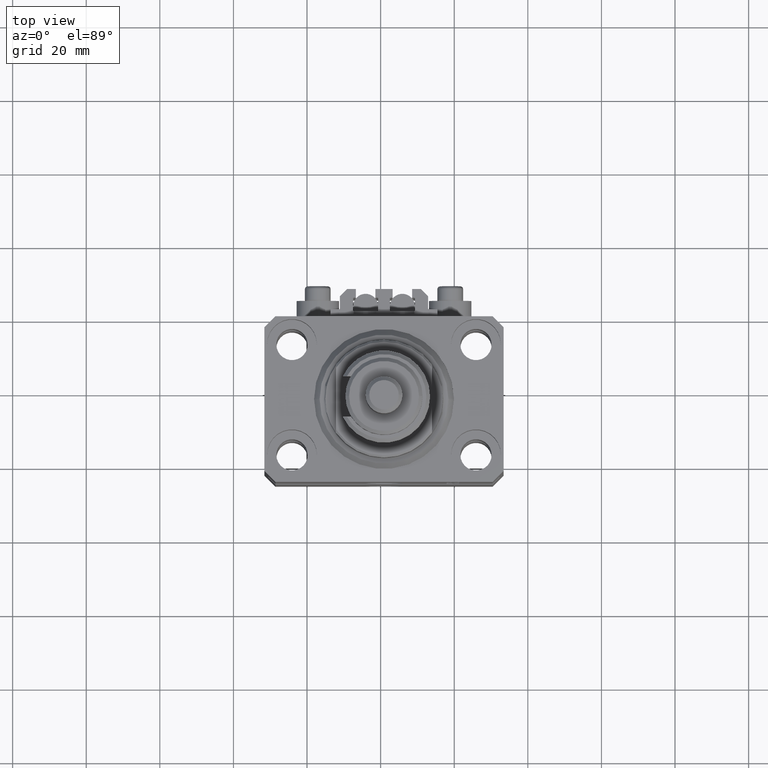
[diagram: clean part render]
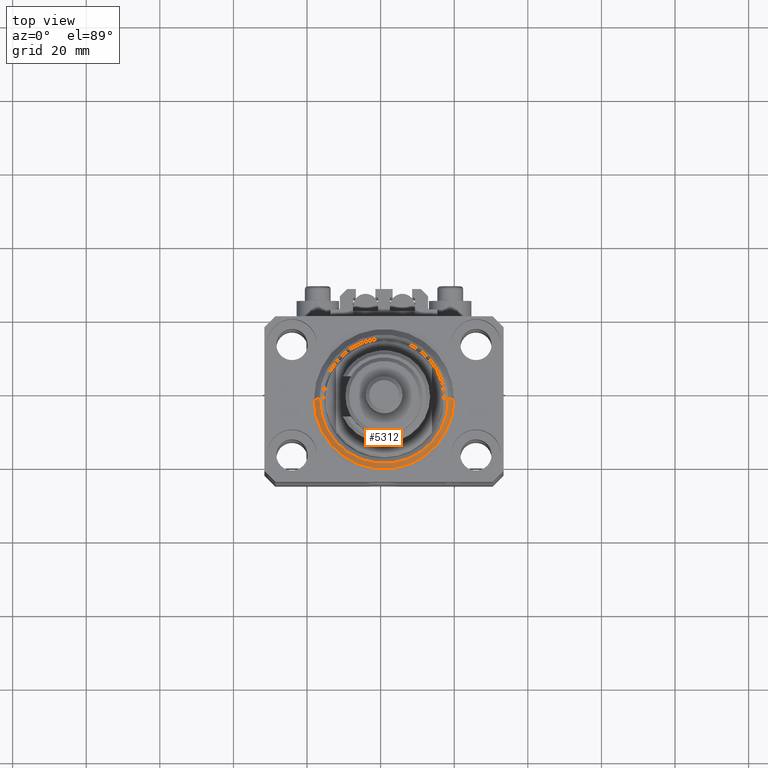
[diagram: same view with one face highlighted and labeled with its STEP entity id]
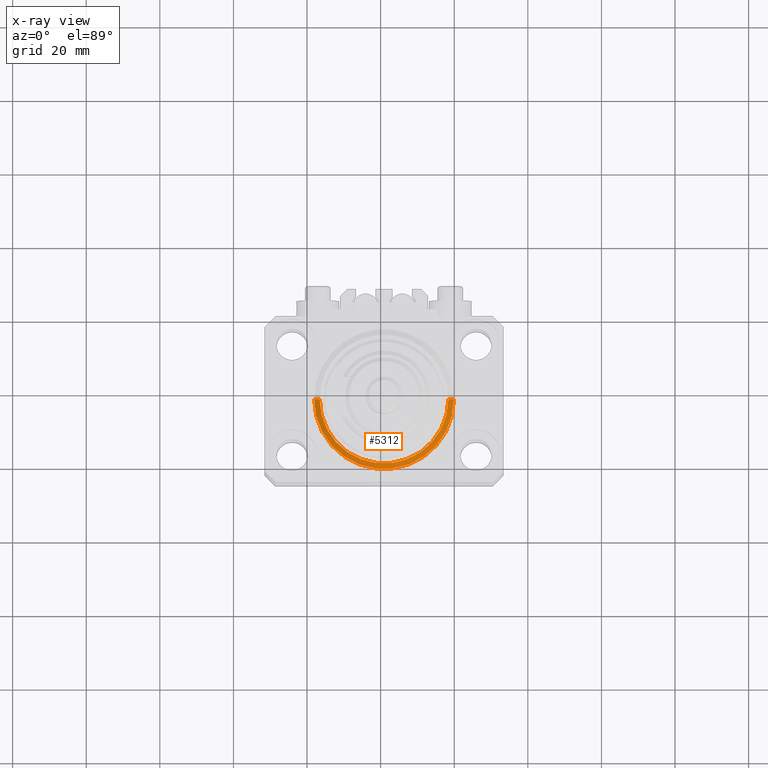
[diagram: x-ray of the same camera — body ghosted, the highlighted face saturated]
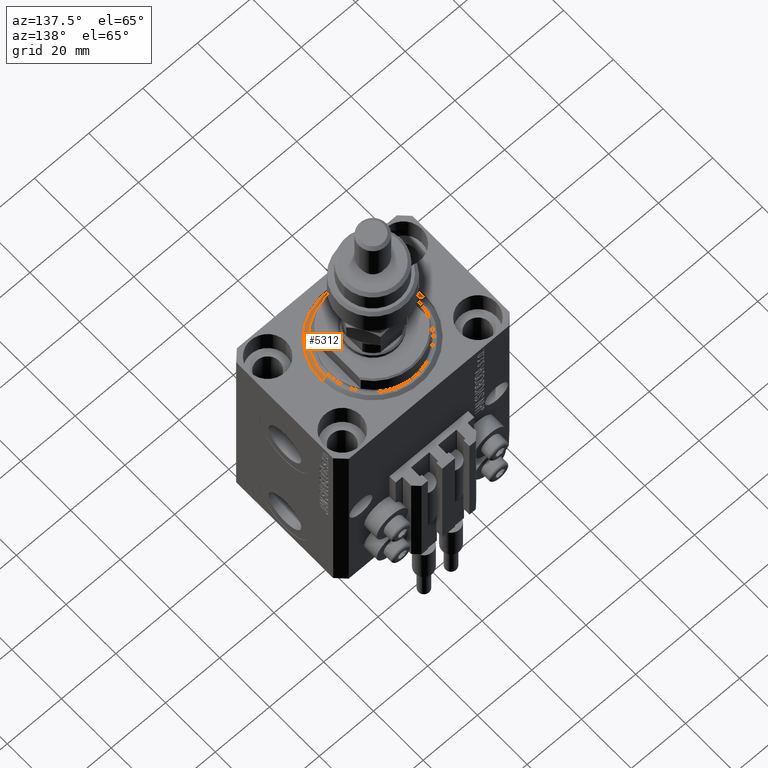
[diagram: same view with one face highlighted and labeled with its STEP entity id]
A machine part, top view. The second image highlights one B-rep face of the part: STEP entity #5312.
The next image is the same camera in x-ray: the body ghosted, the highlighted face saturated — about 0% of this face is hidden behind the body in this view.
A second angle (auxiliary view) of the same face is appended — the face is thin or edge-on in the first view.
In plain terms, the highlighted conical surface has half-angle 45 deg.
Its self-contained STEP definition (entity closure, byte-faithful):
#331 = EDGE_CURVE ( 'NONE', #40286, #14947, #15372, .T. ) ;
#2068 = VECTOR ( 'NONE', #45447, 1000.000000000000000 ) ;
#3340 = CARTESIAN_POINT ( 'NONE',  ( 0.000000000000000000, 0.000000000000000000, 1.500000000000001332 ) ) ;
#3564 = DIRECTION ( 'NONE',  ( 0.7071067811865483499, 0.000000000000000000, 0.7071067811865467956 ) ) ;
#4776 = CARTESIAN_POINT ( 'NONE',  ( 0.000000000000000000, 0.000000000000000000, 0.000000000000000000 ) ) ;
#5089 = AXIS2_PLACEMENT_3D ( 'NONE', #3340, #30575, #30830 ) ;
#5312 = ADVANCED_FACE ( 'NONE', ( #48618 ), #30240, .T. ) ;
#5357 = LINE ( 'NONE', #48536, #2068 ) ;
#5659 = ORIENTED_EDGE ( 'NONE', *, *, #25699, .F. ) ;
#7566 = CIRCLE ( 'NONE', #5089, 19.00000000000000000 ) ;
#8080 = AXIS2_PLACEMENT_3D ( 'NONE', #20860, #25207, #28055 ) ;
#12178 = ORIENTED_EDGE ( 'NONE', *, *, #14639, .F. ) ;
#14639 = EDGE_CURVE ( 'NONE', #46335, #14947, #7566, .T. ) ;
#14947 = VERTEX_POINT ( 'NONE', #36703 ) ;
#15372 = LINE ( 'NONE', #38507, #29370 ) ;
#20860 = CARTESIAN_POINT ( 'NONE',  ( 0.000000000000000000, 0.000000000000000000, 1.500000000000001332 ) ) ;
#21806 = CIRCLE ( 'NONE', #32458, 17.49999999999999645 ) ;
#24023 = CARTESIAN_POINT ( 'NONE',  ( -17.49999999999999645, 2.234980408443919215E-15, 0.000000000000000000 ) ) ;
#25207 = DIRECTION ( 'NONE',  ( -0.000000000000000000, -0.000000000000000000, 1.000000000000000000 ) ) ;
#25699 = EDGE_CURVE ( 'NONE', #40286, #33408, #21806, .T. ) ;
#28055 = DIRECTION ( 'NONE',  ( 1.000000000000000000, 0.000000000000000000, 0.000000000000000000 ) ) ;
#29370 = VECTOR ( 'NONE', #3564, 1000.000000000000000 ) ;
#29989 = CARTESIAN_POINT ( 'NONE',  ( -19.00000000000000000, 0.000000000000000000, 1.500000000000001332 ) ) ;
#30240 = CONICAL_SURFACE ( 'NONE', #8080, 19.00000000000000000, 0.7853981633974492782 ) ;
#30575 = DIRECTION ( 'NONE',  ( -0.000000000000000000, -0.000000000000000000, 1.000000000000000000 ) ) ;
#30830 = DIRECTION ( 'NONE',  ( 1.000000000000000000, 0.000000000000000000, 0.000000000000000000 ) ) ;
#32458 = AXIS2_PLACEMENT_3D ( 'NONE', #4776, #32746, #36351 ) ;
#32746 = DIRECTION ( 'NONE',  ( -0.000000000000000000, -0.000000000000000000, -1.000000000000000000 ) ) ;
#33220 = EDGE_LOOP ( 'NONE', ( #45297, #5659, #48832, #12178 ) ) ;
#33408 = VERTEX_POINT ( 'NONE', #24023 ) ;
#36351 = DIRECTION ( 'NONE',  ( 1.000000000000000000, 0.000000000000000000, 0.000000000000000000 ) ) ;
#36703 = CARTESIAN_POINT ( 'NONE',  ( 19.00000000000000000, 2.326828918379970970E-15, 1.500000000000001332 ) ) ;
#38507 = CARTESIAN_POINT ( 'NONE',  ( 19.00000000000000000, 0.000000000000000000, 1.500000000000001332 ) ) ;
#40286 = VERTEX_POINT ( 'NONE', #49290 ) ;
#45297 = ORIENTED_EDGE ( 'NONE', *, *, #49407, .F. ) ;
#45447 = DIRECTION ( 'NONE',  ( -0.7071067811865483499, 8.659560562354942719E-17, 0.7071067811865467956 ) ) ;
#46335 = VERTEX_POINT ( 'NONE', #29989 ) ;
#48536 = CARTESIAN_POINT ( 'NONE',  ( -19.00000000000000000, 2.326828918379970970E-15, 1.500000000000001332 ) ) ;
#48618 = FACE_OUTER_BOUND ( 'NONE', #33220, .T. ) ;
#48832 = ORIENTED_EDGE ( 'NONE', *, *, #331, .T. ) ;
#49290 = CARTESIAN_POINT ( 'NONE',  ( 17.49999999999999645, 0.000000000000000000, 0.000000000000000000 ) ) ;
#49407 = EDGE_CURVE ( 'NONE', #33408, #46335, #5357, .T. ) ;